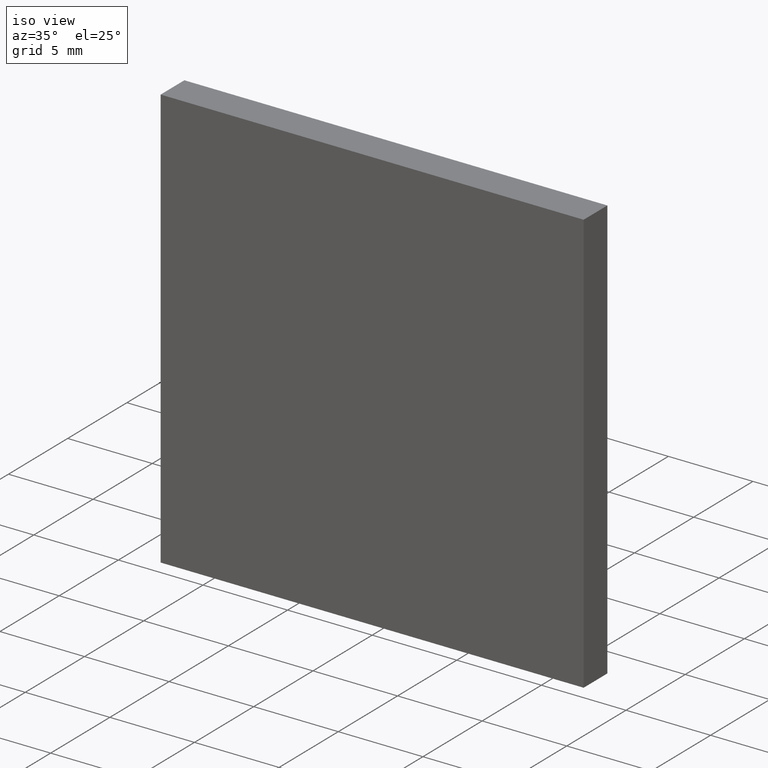
[diagram: clean part render]
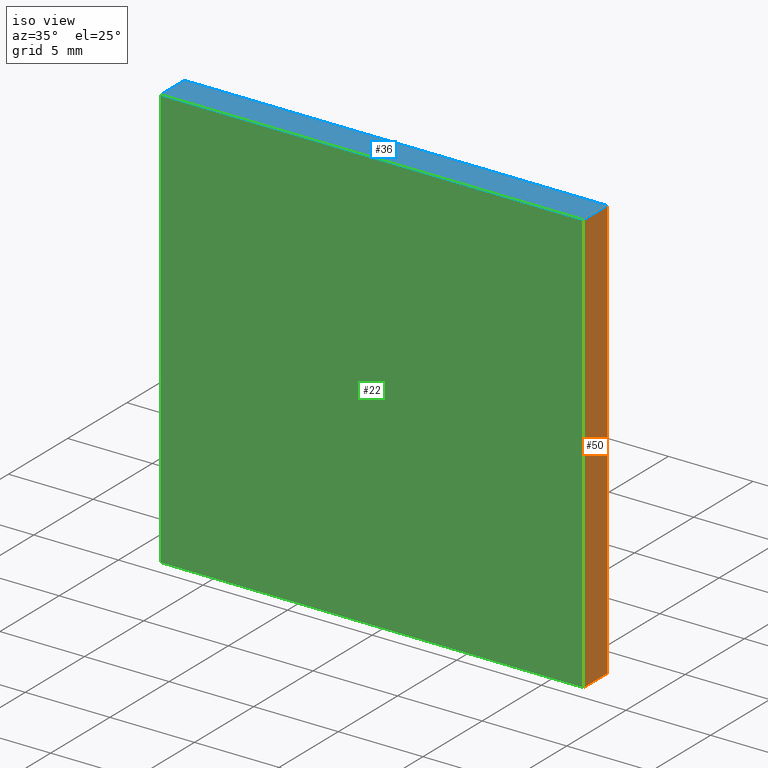
[diagram: same view with three faces highlighted in distinct colors, each labeled with its STEP entity id]
A machine part, iso view with three faces highlighted in distinct colors.
Their STEP definitions:

[orange] entity #50 — the highlighted planar face has unit normal (-1, 0, 0).
#2 = DIRECTION ( 'NONE',  ( -1.387778780781445700E-016, -0.0000000000000000000, -1.000000000000000000 ) ) ;
#3 = EDGE_LOOP ( 'NONE', ( #155, #35, #102, #99 ) ) ;
#4 = CARTESIAN_POINT ( 'NONE',  ( 12.50000000000000200, 0.0000000000000000000, -12.50000000000000000 ) ) ;
#10 = VECTOR ( 'NONE', #32, 1000.000000000000000 ) ;
#12 = LINE ( 'NONE', #126, #49 ) ;
#14 = CARTESIAN_POINT ( 'NONE',  ( 12.50000000000000200, 2.000000000000000000, -12.50000000000000000 ) ) ;
#21 = AXIS2_PLACEMENT_3D ( 'NONE', #14, #186, #72 ) ;
#25 = FACE_OUTER_BOUND ( 'NONE', #3, .T. ) ;
#26 = CARTESIAN_POINT ( 'NONE',  ( 12.50000000000000500, 2.000000000000000000, 12.50000000000000000 ) ) ;
#32 = DIRECTION ( 'NONE',  ( -0.0000000000000000000, -1.000000000000000000, -0.0000000000000000000 ) ) ;
#35 = ORIENTED_EDGE ( 'NONE', *, *, #184, .F. ) ;
#48 = LINE ( 'NONE', #137, #132 ) ;
#49 = VECTOR ( 'NONE', #2, 1000.000000000000000 ) ;
#50 = ADVANCED_FACE ( 'NONE', ( #25 ), #93, .F. ) ;
#69 = CARTESIAN_POINT ( 'NONE',  ( 12.50000000000000200, 2.000000000000000000, -12.50000000000000000 ) ) ;
#72 = DIRECTION ( 'NONE',  ( 1.387778780781445700E-016, 0.0000000000000000000, 1.000000000000000000 ) ) ;
#78 = LINE ( 'NONE', #176, #82 ) ;
#82 = VECTOR ( 'NONE', #115, 1000.000000000000000 ) ;
#83 = VERTEX_POINT ( 'NONE', #185 ) ;
#93 = PLANE ( 'NONE',  #21 ) ;
#96 = VERTEX_POINT ( 'NONE', #26 ) ;
#99 = ORIENTED_EDGE ( 'NONE', *, *, #196, .T. ) ;
#100 = EDGE_CURVE ( 'NONE', #83, #179, #48, .T. ) ;
#102 = ORIENTED_EDGE ( 'NONE', *, *, #169, .F. ) ;
#115 = DIRECTION ( 'NONE',  ( -0.0000000000000000000, -1.000000000000000000, -0.0000000000000000000 ) ) ;
#126 = CARTESIAN_POINT ( 'NONE',  ( 12.50000000000000200, 2.000000000000000000, -12.50000000000000000 ) ) ;
#132 = VECTOR ( 'NONE', #136, 1000.000000000000000 ) ;
#136 = DIRECTION ( 'NONE',  ( -1.387778780781445700E-016, -0.0000000000000000000, -1.000000000000000000 ) ) ;
#137 = CARTESIAN_POINT ( 'NONE',  ( 12.50000000000000200, 0.0000000000000000000, -12.50000000000000000 ) ) ;
#140 = VERTEX_POINT ( 'NONE', #69 ) ;
#143 = CARTESIAN_POINT ( 'NONE',  ( 12.50000000000000200, 2.000000000000000000, -12.50000000000000000 ) ) ;
#155 = ORIENTED_EDGE ( 'NONE', *, *, #100, .T. ) ;
#169 = EDGE_CURVE ( 'NONE', #96, #140, #12, .T. ) ;
#176 = CARTESIAN_POINT ( 'NONE',  ( 12.50000000000000500, 2.000000000000000000, 12.50000000000000000 ) ) ;
#179 = VERTEX_POINT ( 'NONE', #4 ) ;
#184 = EDGE_CURVE ( 'NONE', #140, #179, #199, .T. ) ;
#185 = CARTESIAN_POINT ( 'NONE',  ( 12.50000000000000500, 0.0000000000000000000, 12.50000000000000000 ) ) ;
#186 = DIRECTION ( 'NONE',  ( -1.000000000000000000, 0.0000000000000000000, 1.387778780781445700E-016 ) ) ;
#196 = EDGE_CURVE ( 'NONE', #96, #83, #78, .T. ) ;
#199 = LINE ( 'NONE', #143, #10 ) ;

[blue] entity #36 — the highlighted planar face has unit normal (0, 0, -1).
#1 = AXIS2_PLACEMENT_3D ( 'NONE', #153, #189, #122 ) ;
#11 = FACE_OUTER_BOUND ( 'NONE', #67, .T. ) ;
#26 = CARTESIAN_POINT ( 'NONE',  ( 12.50000000000000500, 2.000000000000000000, 12.50000000000000000 ) ) ;
#29 = CARTESIAN_POINT ( 'NONE',  ( -12.49999999999999500, 2.000000000000000000, 12.50000000000000000 ) ) ;
#36 = ADVANCED_FACE ( 'NONE', ( #11 ), #139, .F. ) ;
#39 = CARTESIAN_POINT ( 'NONE',  ( -12.49999999999999500, 2.000000000000000000, 12.50000000000000000 ) ) ;
#54 = CARTESIAN_POINT ( 'NONE',  ( -12.49999999999999500, 2.000000000000000000, 12.50000000000000000 ) ) ;
#58 = VERTEX_POINT ( 'NONE', #106 ) ;
#59 = VECTOR ( 'NONE', #138, 1000.000000000000000 ) ;
#62 = EDGE_CURVE ( 'NONE', #131, #96, #65, .T. ) ;
#65 = LINE ( 'NONE', #29, #59 ) ;
#67 = EDGE_LOOP ( 'NONE', ( #113, #77, #182, #125 ) ) ;
#71 = EDGE_CURVE ( 'NONE', #131, #58, #101, .T. ) ;
#77 = ORIENTED_EDGE ( 'NONE', *, *, #196, .F. ) ;
#78 = LINE ( 'NONE', #176, #82 ) ;
#82 = VECTOR ( 'NONE', #115, 1000.000000000000000 ) ;
#83 = VERTEX_POINT ( 'NONE', #185 ) ;
#91 = VECTOR ( 'NONE', #111, 1000.000000000000000 ) ;
#96 = VERTEX_POINT ( 'NONE', #26 ) ;
#101 = LINE ( 'NONE', #54, #197 ) ;
#105 = DIRECTION ( 'NONE',  ( -0.0000000000000000000, -1.000000000000000000, -0.0000000000000000000 ) ) ;
#106 = CARTESIAN_POINT ( 'NONE',  ( -12.49999999999999500, 0.0000000000000000000, 12.50000000000000000 ) ) ;
#111 = DIRECTION ( 'NONE',  ( 1.000000000000000000, 0.0000000000000000000, 0.0000000000000000000 ) ) ;
#113 = ORIENTED_EDGE ( 'NONE', *, *, #163, .T. ) ;
#115 = DIRECTION ( 'NONE',  ( -0.0000000000000000000, -1.000000000000000000, -0.0000000000000000000 ) ) ;
#122 = DIRECTION ( 'NONE',  ( -1.000000000000000000, 0.0000000000000000000, -0.0000000000000000000 ) ) ;
#125 = ORIENTED_EDGE ( 'NONE', *, *, #71, .T. ) ;
#131 = VERTEX_POINT ( 'NONE', #39 ) ;
#138 = DIRECTION ( 'NONE',  ( 1.000000000000000000, 0.0000000000000000000, 0.0000000000000000000 ) ) ;
#139 = PLANE ( 'NONE',  #1 ) ;
#144 = LINE ( 'NONE', #150, #91 ) ;
#150 = CARTESIAN_POINT ( 'NONE',  ( -12.49999999999999500, 0.0000000000000000000, 12.50000000000000000 ) ) ;
#153 = CARTESIAN_POINT ( 'NONE',  ( -12.49999999999999500, 2.000000000000000000, 12.50000000000000000 ) ) ;
#163 = EDGE_CURVE ( 'NONE', #58, #83, #144, .T. ) ;
#176 = CARTESIAN_POINT ( 'NONE',  ( 12.50000000000000500, 2.000000000000000000, 12.50000000000000000 ) ) ;
#182 = ORIENTED_EDGE ( 'NONE', *, *, #62, .F. ) ;
#185 = CARTESIAN_POINT ( 'NONE',  ( 12.50000000000000500, 0.0000000000000000000, 12.50000000000000000 ) ) ;
#189 = DIRECTION ( 'NONE',  ( 0.0000000000000000000, 0.0000000000000000000, -1.000000000000000000 ) ) ;
#196 = EDGE_CURVE ( 'NONE', #96, #83, #78, .T. ) ;
#197 = VECTOR ( 'NONE', #105, 1000.000000000000000 ) ;

[green] entity #22 — the highlighted planar face has unit normal (0, 1, 0).
#4 = CARTESIAN_POINT ( 'NONE',  ( 12.50000000000000200, 0.0000000000000000000, -12.50000000000000000 ) ) ;
#16 = ORIENTED_EDGE ( 'NONE', *, *, #84, .F. ) ;
#19 = EDGE_LOOP ( 'NONE', ( #134, #86, #16, #187 ) ) ;
#22 = ADVANCED_FACE ( 'NONE', ( #44 ), #157, .F. ) ;
#27 = CARTESIAN_POINT ( 'NONE',  ( -12.49999999999999800, 0.0000000000000000000, -12.50000000000000000 ) ) ;
#28 = LINE ( 'NONE', #27, #112 ) ;
#43 = DIRECTION ( 'NONE',  ( 0.0000000000000000000, 1.000000000000000000, 0.0000000000000000000 ) ) ;
#44 = FACE_OUTER_BOUND ( 'NONE', #19, .T. ) ;
#48 = LINE ( 'NONE', #137, #132 ) ;
#53 = DIRECTION ( 'NONE',  ( 1.387778780781445700E-016, 0.0000000000000000000, 1.000000000000000000 ) ) ;
#58 = VERTEX_POINT ( 'NONE', #106 ) ;
#64 = EDGE_CURVE ( 'NONE', #179, #165, #28, .T. ) ;
#83 = VERTEX_POINT ( 'NONE', #185 ) ;
#84 = EDGE_CURVE ( 'NONE', #165, #58, #192, .T. ) ;
#86 = ORIENTED_EDGE ( 'NONE', *, *, #163, .F. ) ;
#88 = CARTESIAN_POINT ( 'NONE',  ( -12.49999999999999800, 0.0000000000000000000, -12.50000000000000000 ) ) ;
#91 = VECTOR ( 'NONE', #111, 1000.000000000000000 ) ;
#92 = CARTESIAN_POINT ( 'NONE',  ( -12.49999999999999800, 0.0000000000000000000, -12.50000000000000000 ) ) ;
#100 = EDGE_CURVE ( 'NONE', #83, #179, #48, .T. ) ;
#106 = CARTESIAN_POINT ( 'NONE',  ( -12.49999999999999500, 0.0000000000000000000, 12.50000000000000000 ) ) ;
#111 = DIRECTION ( 'NONE',  ( 1.000000000000000000, 0.0000000000000000000, 0.0000000000000000000 ) ) ;
#112 = VECTOR ( 'NONE', #171, 1000.000000000000000 ) ;
#132 = VECTOR ( 'NONE', #136, 1000.000000000000000 ) ;
#134 = ORIENTED_EDGE ( 'NONE', *, *, #100, .F. ) ;
#136 = DIRECTION ( 'NONE',  ( -1.387778780781445700E-016, -0.0000000000000000000, -1.000000000000000000 ) ) ;
#137 = CARTESIAN_POINT ( 'NONE',  ( 12.50000000000000200, 0.0000000000000000000, -12.50000000000000000 ) ) ;
#142 = CARTESIAN_POINT ( 'NONE',  ( 0.0000000000000000000, 0.0000000000000000000, 0.0000000000000000000 ) ) ;
#144 = LINE ( 'NONE', #150, #91 ) ;
#147 = VECTOR ( 'NONE', #53, 1000.000000000000000 ) ;
#150 = CARTESIAN_POINT ( 'NONE',  ( -12.49999999999999500, 0.0000000000000000000, 12.50000000000000000 ) ) ;
#157 = PLANE ( 'NONE',  #195 ) ;
#163 = EDGE_CURVE ( 'NONE', #58, #83, #144, .T. ) ;
#165 = VERTEX_POINT ( 'NONE', #88 ) ;
#171 = DIRECTION ( 'NONE',  ( -1.000000000000000000, -0.0000000000000000000, -0.0000000000000000000 ) ) ;
#173 = DIRECTION ( 'NONE',  ( 0.0000000000000000000, -0.0000000000000000000, 1.000000000000000000 ) ) ;
#179 = VERTEX_POINT ( 'NONE', #4 ) ;
#185 = CARTESIAN_POINT ( 'NONE',  ( 12.50000000000000500, 0.0000000000000000000, 12.50000000000000000 ) ) ;
#187 = ORIENTED_EDGE ( 'NONE', *, *, #64, .F. ) ;
#192 = LINE ( 'NONE', #92, #147 ) ;
#195 = AXIS2_PLACEMENT_3D ( 'NONE', #142, #43, #173 ) ;